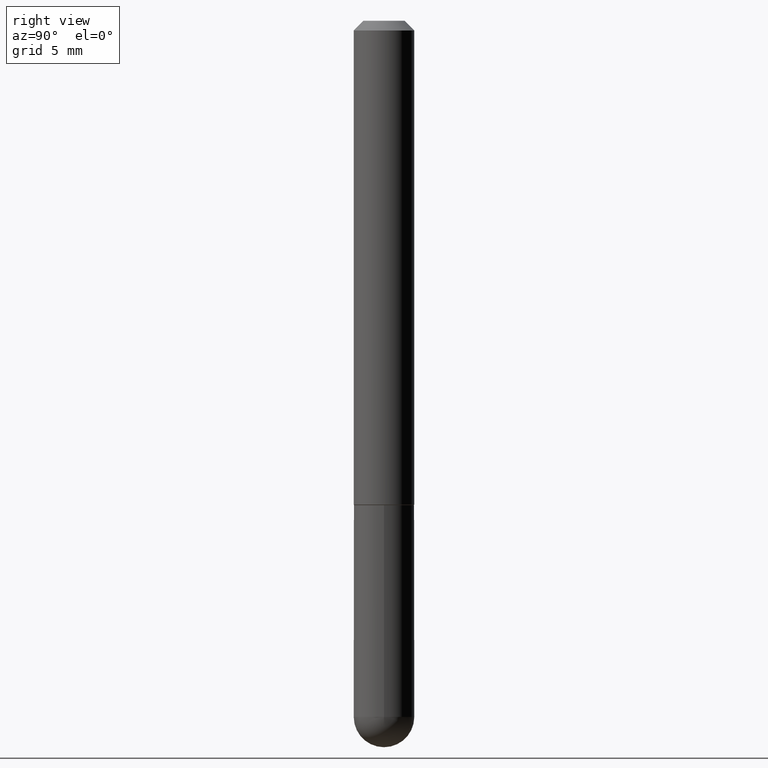
[diagram: clean part render]
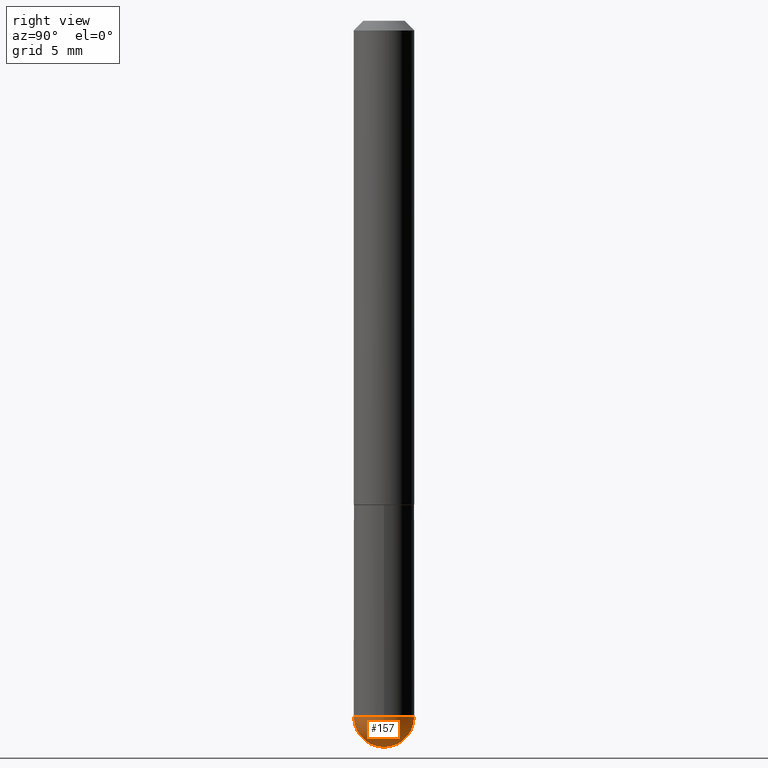
[diagram: same view with one face highlighted and labeled with its STEP entity id]
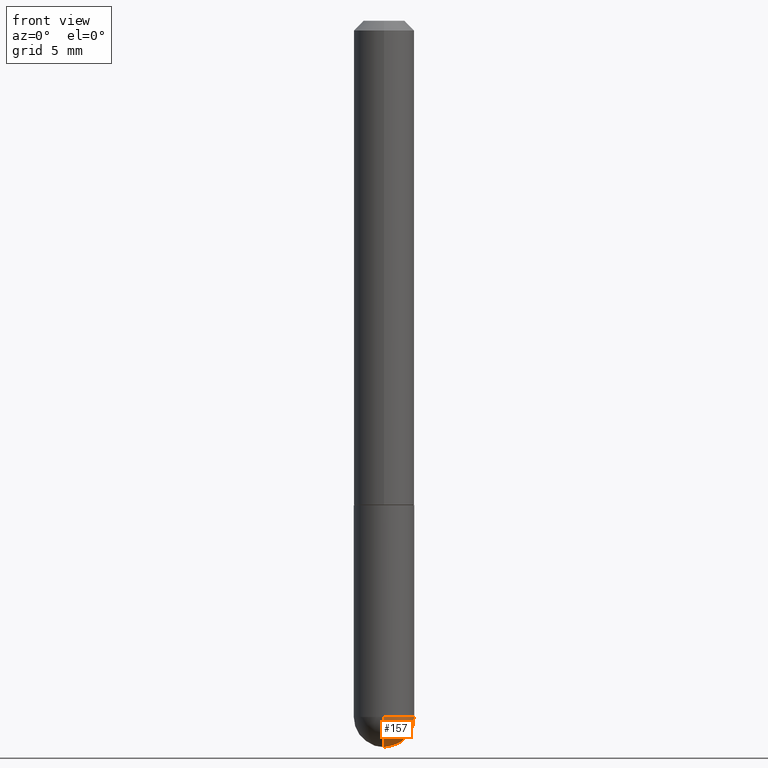
[diagram: same view with one face highlighted and labeled with its STEP entity id]
A machine part, right view. The second image highlights one B-rep face of the part: STEP entity #157.
A second angle (front view) of the same face is appended — the face is thin or edge-on in the first view.
In plain terms, the highlighted spherical surface has radius 1.5875 mm.
Its self-contained STEP definition (entity closure, byte-faithful):
#11 = DIRECTION ( 'NONE',  ( -2.445468806185136597E-29, 3.491481338843145583E-15, 1.000000000000000000 ) ) ;
#17 = CARTESIAN_POINT ( 'NONE',  ( 3.184241630977248732E-29, -5.493186792727072638E-15, -1.437500000000000222 ) ) ;
#42 = CARTESIAN_POINT ( 'NONE',  ( 3.515361408891134418E-29, -5.019004424587023131E-15, -1.437500000000000222 ) ) ;
#56 = DIRECTION ( 'NONE',  ( 6.982962677686266711E-15, 1.000000000000000000, -4.370956789862806950E-15 ) ) ;
#77 = DIRECTION ( 'NONE',  ( 1.000000000000000000, -6.982962677686265922E-15, 4.883557194083112340E-29 ) ) ;
#83 = DIRECTION ( 'NONE',  ( 1.000000000000000000, -6.982962677686265133E-15, 0.000000000000000000 ) ) ;
#90 = EDGE_LOOP ( 'NONE', ( #170, #326, #404, #132 ) ) ;
#92 = CARTESIAN_POINT ( 'NONE',  ( 3.339755826017505569E-29, -5.707577355157435366E-15, -1.500000000000000444 ) ) ;
#95 = SPHERICAL_SURFACE ( 'NONE', #317, 0.06250000000000020817 ) ;
#105 = EDGE_CURVE ( 'NONE', #282, #211, #406, .T. ) ;
#117 = VERTEX_POINT ( 'NONE', #92 ) ;
#125 = DIRECTION ( 'NONE',  ( 1.000000000000000000, -6.982962677686265133E-15, 0.000000000000000000 ) ) ;
#132 = ORIENTED_EDGE ( 'NONE', *, *, #105, .F. ) ;
#134 = CARTESIAN_POINT ( 'NONE',  ( 3.184241630977248732E-29, -5.493186792727072638E-15, -1.437500000000000222 ) ) ;
#154 = DIRECTION ( 'NONE',  ( -1.000000000000000000, 7.105427357601001070E-15, -4.926315508542082329E-29 ) ) ;
#157 = ADVANCED_FACE ( 'NONE', ( #405 ), #95, .T. ) ;
#161 = AXIS2_PLACEMENT_3D ( 'NONE', #42, #11, #83 ) ;
#164 = CARTESIAN_POINT ( 'NONE',  ( 4.364351673554257876E-16, 0.06249999999999484440, -1.437500000000000444 ) ) ;
#170 = ORIENTED_EDGE ( 'NONE', *, *, #364, .F. ) ;
#172 = CIRCLE ( 'NONE', #291, 0.06250000000000020817 ) ;
#183 = CARTESIAN_POINT ( 'NONE',  ( 3.184241630977248732E-29, -5.493186792727072638E-15, -1.437500000000000222 ) ) ;
#194 = DIRECTION ( 'NONE',  ( -7.105427357601000281E-15, -1.000000000000000000, 0.000000000000000000 ) ) ;
#198 = AXIS2_PLACEMENT_3D ( 'NONE', #183, #154, #194 ) ;
#211 = VERTEX_POINT ( 'NONE', #344 ) ;
#250 = DIRECTION ( 'NONE',  ( -2.445468806185136597E-29, 3.491481338843145583E-15, 1.000000000000000000 ) ) ;
#265 = DIRECTION ( 'NONE',  ( 6.982962677686265922E-15, 1.000000000000000000, 0.000000000000000000 ) ) ;
#277 = AXIS2_PLACEMENT_3D ( 'NONE', #318, #250, #125 ) ;
#282 = VERTEX_POINT ( 'NONE', #390 ) ;
#291 = AXIS2_PLACEMENT_3D ( 'NONE', #134, #77, #265 ) ;
#304 = EDGE_CURVE ( 'NONE', #117, #311, #172, .T. ) ;
#311 = VERTEX_POINT ( 'NONE', #164 ) ;
#317 = AXIS2_PLACEMENT_3D ( 'NONE', #17, #340, #56 ) ;
#318 = CARTESIAN_POINT ( 'NONE',  ( 3.515361408891134418E-29, -5.019004424587023131E-15, -1.437500000000000222 ) ) ;
#326 = ORIENTED_EDGE ( 'NONE', *, *, #304, .T. ) ;
#333 = EDGE_CURVE ( 'NONE', #211, #311, #387, .T. ) ;
#340 = DIRECTION ( 'NONE',  ( -1.000000000000000000, 6.982962677686266711E-15, -4.883557194083112901E-29 ) ) ;
#344 = CARTESIAN_POINT ( 'NONE',  ( 0.06249999999999997918, -4.691678049070475040E-15, -1.437500000000000222 ) ) ;
#364 = EDGE_CURVE ( 'NONE', #117, #282, #371, .T. ) ;
#371 = CIRCLE ( 'NONE', #198, 0.06250000000000020817 ) ;
#387 = CIRCLE ( 'NONE', #161, 0.06249999999999997918 ) ;
#390 = CARTESIAN_POINT ( 'NONE',  ( -4.440892098500296812E-16, -0.06250000000000534295, -1.437500000000000000 ) ) ;
#404 = ORIENTED_EDGE ( 'NONE', *, *, #333, .F. ) ;
#405 = FACE_OUTER_BOUND ( 'NONE', #90, .T. ) ;
#406 = CIRCLE ( 'NONE', #277, 0.06249999999999997918 ) ;